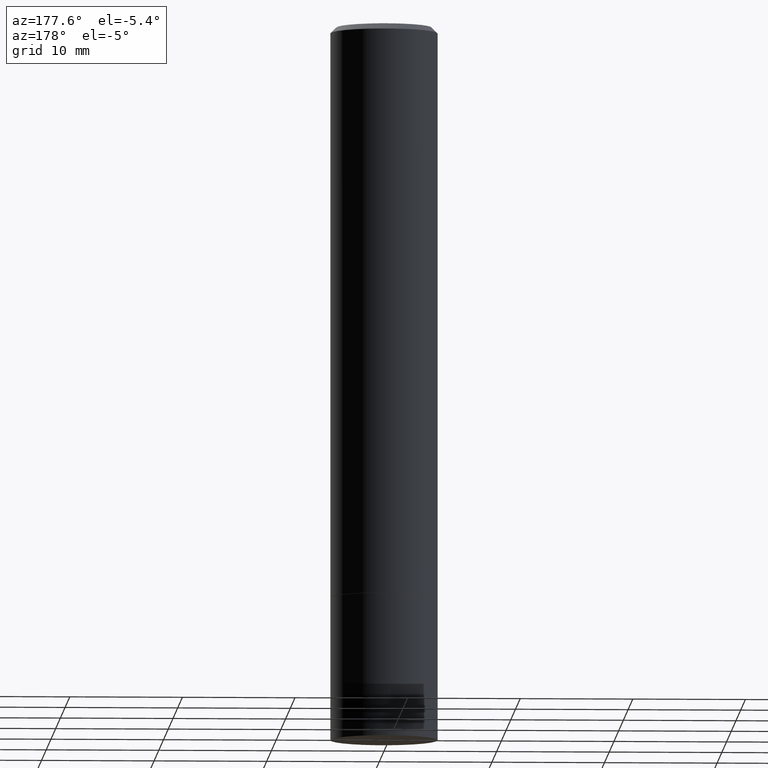
[diagram: clean part render]
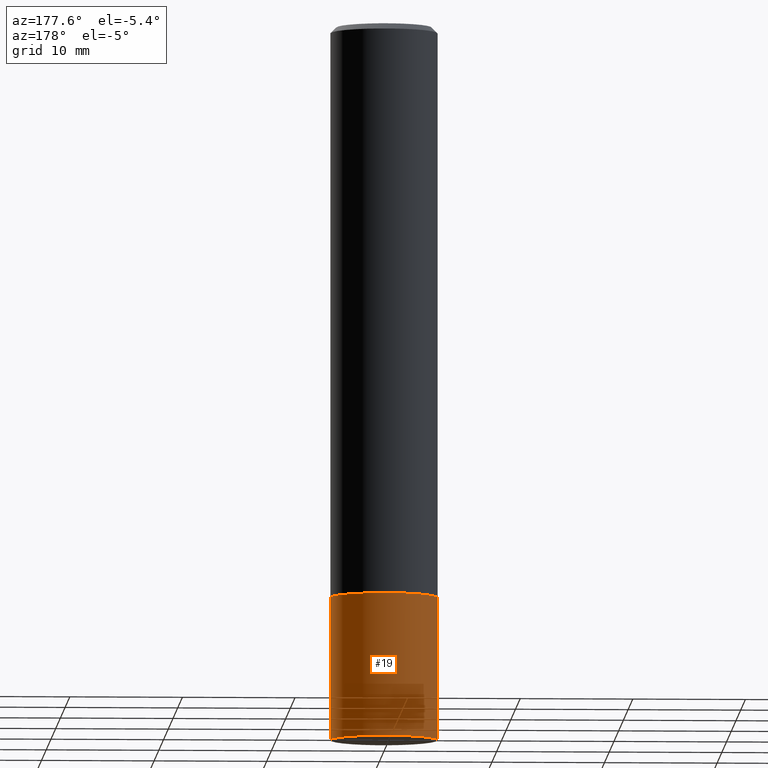
[diagram: same view with one face highlighted and labeled with its STEP entity id]
A machine part, auxiliary view. The second image highlights one B-rep face of the part: STEP entity #19.
In plain terms, the highlighted cylindrical surface (partial cylindrical patch) has radius 4.7625 mm, axis along (-0, 0, 1).
Its self-contained STEP definition (entity closure, byte-faithful):
#5 = DIRECTION ( 'NONE',  ( 1.000000000000000000, -6.982962677686266711E-15, 0.000000000000000000 ) ) ;
#19 = ADVANCED_FACE ( 'NONE', ( #234 ), #358, .T. ) ;
#27 = DIRECTION ( 'NONE',  ( 1.000000000000000000, -6.982962677686265922E-15, 4.876176775795935793E-29 ) ) ;
#36 = AXIS2_PLACEMENT_3D ( 'NONE', #301, #273, #5 ) ;
#52 = CIRCLE ( 'NONE', #267, 0.1875000000000000278 ) ;
#57 = ORIENTED_EDGE ( 'NONE', *, *, #361, .T. ) ;
#68 = ORIENTED_EDGE ( 'NONE', *, *, #259, .F. ) ;
#72 = CARTESIAN_POINT ( 'NONE',  ( 0.1875000000000000278, -1.309305502066175008E-15, 9.142831454617381013E-30 ) ) ;
#82 = VECTOR ( 'NONE', #389, 39.37007874015748143 ) ;
#101 = CARTESIAN_POINT ( 'NONE',  ( 0.1875000000000000278, -8.292268179752466962E-15, -2.000000000000000000 ) ) ;
#123 = CARTESIAN_POINT ( 'NONE',  ( 0.1875000000000009992, -1.001504672169003342E-14, -2.500000000000000000 ) ) ;
#131 = VERTEX_POINT ( 'NONE', #123 ) ;
#134 = EDGE_LOOP ( 'NONE', ( #57, #217, #295, #68 ) ) ;
#150 = LINE ( 'NONE', #268, #82 ) ;
#156 = VERTEX_POINT ( 'NONE', #265 ) ;
#157 = VECTOR ( 'NONE', #272, 39.37007874015748143 ) ;
#158 = LINE ( 'NONE', #72, #157 ) ;
#168 = EDGE_CURVE ( 'NONE', #156, #284, #150, .T. ) ;
#208 = CARTESIAN_POINT ( 'NONE',  ( 0.000000000000000000, 0.000000000000000000, 0.000000000000000000 ) ) ;
#217 = ORIENTED_EDGE ( 'NONE', *, *, #168, .T. ) ;
#229 = CIRCLE ( 'NONE', #36, 0.1875000000000000278 ) ;
#234 = FACE_OUTER_BOUND ( 'NONE', #134, .T. ) ;
#244 = DIRECTION ( 'NONE',  ( -2.445468806185136597E-29, 3.491481338843145583E-15, 1.000000000000000000 ) ) ;
#249 = DIRECTION ( 'NONE',  ( 1.000000000000000000, -6.982962677686266711E-15, 0.000000000000000000 ) ) ;
#259 = EDGE_CURVE ( 'NONE', #131, #316, #158, .T. ) ;
#265 = CARTESIAN_POINT ( 'NONE',  ( -0.1875000000000009992, -7.419397845041682046E-15, -2.500000000000000000 ) ) ;
#267 = AXIS2_PLACEMENT_3D ( 'NONE', #277, #244, #249 ) ;
#268 = CARTESIAN_POINT ( 'NONE',  ( -0.1875000000000000278, 1.332267629550188046E-15, -9.223003294227947991E-30 ) ) ;
#272 = DIRECTION ( 'NONE',  ( -2.445468806185136877E-29, 3.491481338843145188E-15, 1.000000000000000000 ) ) ;
#273 = DIRECTION ( 'NONE',  ( -2.445468806185136597E-29, 3.491481338843145583E-15, 1.000000000000000000 ) ) ;
#277 = CARTESIAN_POINT ( 'NONE',  ( 6.113672015462842613E-29, -8.728703347107864943E-15, -2.500000000000000000 ) ) ;
#284 = VERTEX_POINT ( 'NONE', #371 ) ;
#295 = ORIENTED_EDGE ( 'NONE', *, *, #306, .F. ) ;
#301 = CARTESIAN_POINT ( 'NONE',  ( 4.890937612370273194E-29, -6.982962677686291165E-15, -2.000000000000000000 ) ) ;
#306 = EDGE_CURVE ( 'NONE', #316, #284, #229, .T. ) ;
#316 = VERTEX_POINT ( 'NONE', #101 ) ;
#358 = CYLINDRICAL_SURFACE ( 'NONE', #368, 0.1875000000000000278 ) ;
#361 = EDGE_CURVE ( 'NONE', #131, #156, #52, .T. ) ;
#363 = DIRECTION ( 'NONE',  ( -2.445468806185136597E-29, 3.491481338843145583E-15, 1.000000000000000000 ) ) ;
#368 = AXIS2_PLACEMENT_3D ( 'NONE', #208, #363, #27 ) ;
#371 = CARTESIAN_POINT ( 'NONE',  ( -0.1875000000000000278, -6.523565382846889811E-15, -2.000000000000000000 ) ) ;
#389 = DIRECTION ( 'NONE',  ( -2.445468806185136877E-29, 3.491481338843145188E-15, 1.000000000000000000 ) ) ;